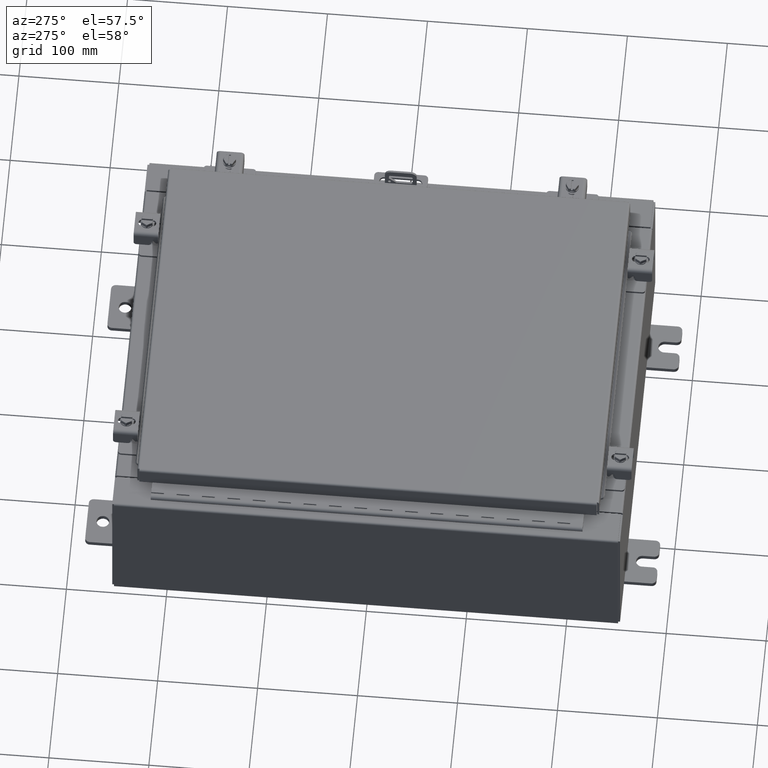
[diagram: clean part render]
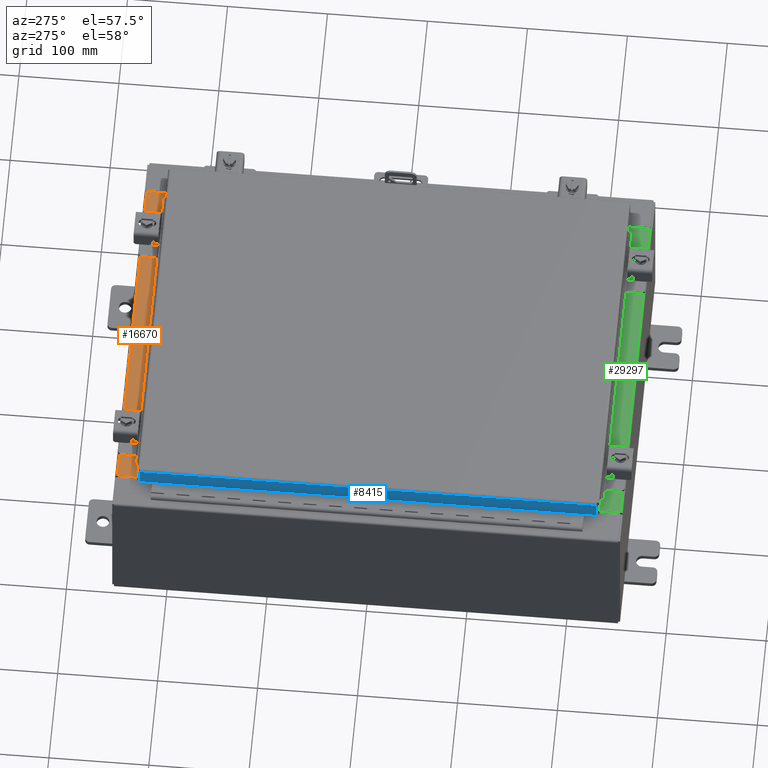
[diagram: same view with three faces highlighted in distinct colors, each labeled with its STEP entity id]
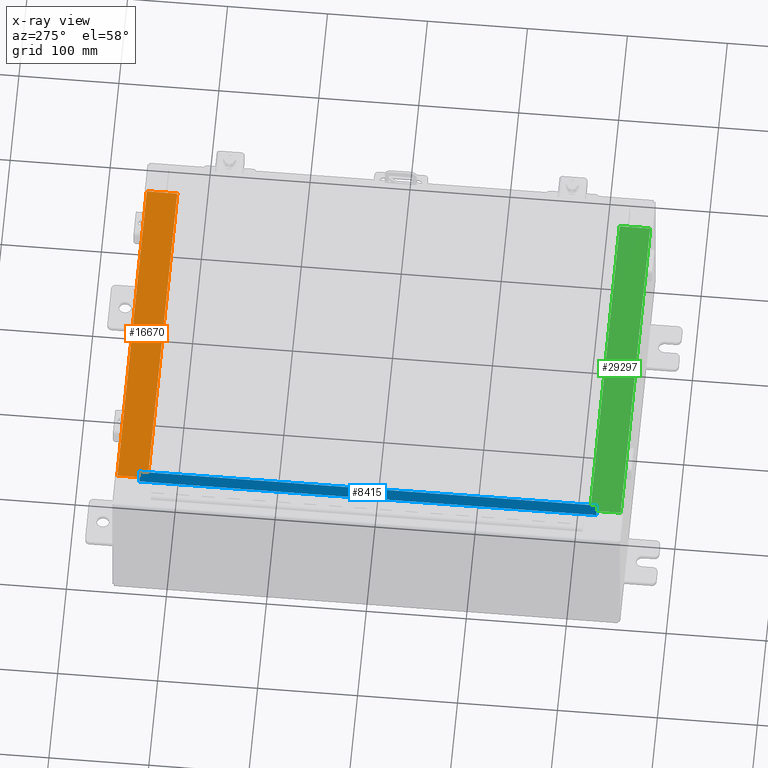
[diagram: x-ray of the same camera — body ghosted, the three highlighted faces saturated]
A machine part, auxiliary view with three faces highlighted in distinct colors.
The next image is the same camera in x-ray (body ghosted, the three faces saturated) — at least one of them is partly hidden behind the body in this view.
Their STEP definitions:

[orange] entity #16670 — the highlighted planar face has unit normal (0, 0, 1).
#143 = VECTOR ( 'NONE', #23878, 39.37007874015748100 ) ;
#1401 = VECTOR ( 'NONE', #24257, 39.37007874015748100 ) ;
#2067 = CARTESIAN_POINT ( 'NONE',  ( 6.637199999999999100, -0.08769999999999993100, 3.000000000000000900 ) ) ;
#3638 = CARTESIAN_POINT ( 'NONE',  ( 6.637200000000000000, -1.300299999999999800, 3.000000000000005300 ) ) ;
#4188 = VERTEX_POINT ( 'NONE', #25237 ) ;
#6175 = LINE ( 'NONE', #7908, #143 ) ;
#7908 = CARTESIAN_POINT ( 'NONE',  ( 0.0000000000000000000, -0.08770000000000026400, 3.000000000000001300 ) ) ;
#8028 = VECTOR ( 'NONE', #11603, 39.37007874015748100 ) ;
#8061 = ORIENTED_EDGE ( 'NONE', *, *, #13787, .F. ) ;
#8126 = LINE ( 'NONE', #3638, #1401 ) ;
#8396 = LINE ( 'NONE', #13828, #13723 ) ;
#10693 = VERTEX_POINT ( 'NONE', #22398 ) ;
#10732 = VERTEX_POINT ( 'NONE', #2067 ) ;
#11429 = EDGE_CURVE ( 'NONE', #10732, #21051, #6175, .T. ) ;
#11603 = DIRECTION ( 'NONE',  ( -1.000000000000000000, 0.0000000000000000000, 0.0000000000000000000 ) ) ;
#11629 = DIRECTION ( 'NONE',  ( -0.0000000000000000000, 1.000000000000000000, -3.566381192773190000E-015 ) ) ;
#11915 = FACE_OUTER_BOUND ( 'NONE', #13298, .T. ) ;
#13167 = DIRECTION ( 'NONE',  ( 0.0000000000000000000, 3.566381192773190000E-015, 1.000000000000000000 ) ) ;
#13298 = EDGE_LOOP ( 'NONE', ( #16402, #15054, #8061, #14436 ) ) ;
#13723 = VECTOR ( 'NONE', #11629, 39.37007874015748100 ) ;
#13787 = EDGE_CURVE ( 'NONE', #10732, #4188, #8126, .T. ) ;
#13828 = CARTESIAN_POINT ( 'NONE',  ( -6.637200000000000000, -0.07469999999999973900, 3.000000000000000900 ) ) ;
#14436 = ORIENTED_EDGE ( 'NONE', *, *, #11429, .T. ) ;
#14780 = LINE ( 'NONE', #23068, #8028 ) ;
#15054 = ORIENTED_EDGE ( 'NONE', *, *, #20749, .F. ) ;
#15599 = EDGE_CURVE ( 'NONE', #10693, #21051, #8396, .T. ) ;
#16402 = ORIENTED_EDGE ( 'NONE', *, *, #15599, .F. ) ;
#16670 = ADVANCED_FACE ( 'NONE', ( #11915 ), #22317, .T. ) ;
#20647 = AXIS2_PLACEMENT_3D ( 'NONE', #26892, #13167, #29147 ) ;
#20749 = EDGE_CURVE ( 'NONE', #4188, #10693, #14780, .T. ) ;
#21051 = VERTEX_POINT ( 'NONE', #22236 ) ;
#22236 = CARTESIAN_POINT ( 'NONE',  ( -6.637200000000000000, -0.08770000000000026400, 3.000000000000000900 ) ) ;
#22317 = PLANE ( 'NONE',  #20647 ) ;
#22398 = CARTESIAN_POINT ( 'NONE',  ( -6.637200000000000000, -1.287299999999999200, 3.000000000000005300 ) ) ;
#23068 = CARTESIAN_POINT ( 'NONE',  ( 6.637200000000000900, -1.287299999999999900, 3.000000000000005300 ) ) ;
#23878 = DIRECTION ( 'NONE',  ( -1.000000000000000000, 0.0000000000000000000, 0.0000000000000000000 ) ) ;
#24257 = DIRECTION ( 'NONE',  ( -0.0000000000000000000, -1.000000000000000000, 3.566381192773190000E-015 ) ) ;
#25237 = CARTESIAN_POINT ( 'NONE',  ( 6.637200000000000000, -1.287299999999999900, 3.000000000000005300 ) ) ;
#26892 = CARTESIAN_POINT ( 'NONE',  ( 0.0000000000000000000, 1.069354855923099900E-014, 3.000000000000000900 ) ) ;
#29147 = DIRECTION ( 'NONE',  ( 0.0000000000000000000, -1.000000000000000000, 3.566381192773190000E-015 ) ) ;

[blue] entity #8415 — the highlighted planar face has unit normal (1, 0, -0).
#238 = VECTOR ( 'NONE', #16373, 39.37007874015748100 ) ;
#1082 = EDGE_LOOP ( 'NONE', ( #20017, #9946, #15395, #7712 ) ) ;
#1414 = LINE ( 'NONE', #4896, #18868 ) ;
#2124 = AXIS2_PLACEMENT_3D ( 'NONE', #29107, #17835, #4193 ) ;
#2967 = VERTEX_POINT ( 'NONE', #12255 ) ;
#3338 = VECTOR ( 'NONE', #11847, 39.37007874015748100 ) ;
#4134 = VERTEX_POINT ( 'NONE', #27401 ) ;
#4193 = DIRECTION ( 'NONE',  ( -3.034122441942816500E-015, 0.0000000000000000000, -1.000000000000000000 ) ) ;
#4896 = CARTESIAN_POINT ( 'NONE',  ( -7.077999999999998500, -9.093999999999999400, -0.08770000000000004200 ) ) ;
#5242 = LINE ( 'NONE', #27987, #11226 ) ;
#6531 = LINE ( 'NONE', #23310, #3338 ) ;
#7258 = CARTESIAN_POINT ( 'NONE',  ( -7.078000000000000300, -9.093999999999999400, -0.7949999999999997100 ) ) ;
#7269 = FACE_OUTER_BOUND ( 'NONE', #1082, .T. ) ;
#7712 = ORIENTED_EDGE ( 'NONE', *, *, #27544, .F. ) ;
#8415 = ADVANCED_FACE ( 'NONE', ( #7269 ), #10922, .F. ) ;
#8747 = CARTESIAN_POINT ( 'NONE',  ( -7.078000000000000300, -9.005157864376261800, -0.7949999999999996000 ) ) ;
#9946 = ORIENTED_EDGE ( 'NONE', *, *, #15490, .T. ) ;
#10922 = PLANE ( 'NONE',  #2124 ) ;
#11226 = VECTOR ( 'NONE', #14297, 39.37007874015748100 ) ;
#11673 = DIRECTION ( 'NONE',  ( 3.645815397208356400E-031, -1.000000000000000000, -1.074717912135910000E-045 ) ) ;
#11847 = DIRECTION ( 'NONE',  ( -3.034122441942816500E-015, 6.982962677686267500E-015, -1.000000000000000000 ) ) ;
#12255 = CARTESIAN_POINT ( 'NONE',  ( -7.077999999999998500, 9.005157864376270600, -0.08770000000000004200 ) ) ;
#14297 = DIRECTION ( 'NONE',  ( -3.034122441942816500E-015, 6.982962677686267500E-015, -1.000000000000000000 ) ) ;
#15395 = ORIENTED_EDGE ( 'NONE', *, *, #16960, .F. ) ;
#15490 = EDGE_CURVE ( 'NONE', #2967, #4134, #5242, .T. ) ;
#16373 = DIRECTION ( 'NONE',  ( 4.379057701015054300E-047, 1.000000000000000000, 1.201604571657912400E-016 ) ) ;
#16960 = EDGE_CURVE ( 'NONE', #22040, #4134, #26592, .T. ) ;
#17835 = DIRECTION ( 'NONE',  ( 1.000000000000000000, 3.645815397208356400E-031, -3.034122441942816500E-015 ) ) ;
#18341 = EDGE_CURVE ( 'NONE', #2967, #27156, #1414, .T. ) ;
#18868 = VECTOR ( 'NONE', #11673, 39.37007874015748100 ) ;
#20017 = ORIENTED_EDGE ( 'NONE', *, *, #18341, .F. ) ;
#22040 = VERTEX_POINT ( 'NONE', #8747 ) ;
#23310 = CARTESIAN_POINT ( 'NONE',  ( -7.077999999999998500, -9.005157864376267100, -0.07469999999999976700 ) ) ;
#26486 = CARTESIAN_POINT ( 'NONE',  ( -7.077999999999998500, -9.005157864376265300, -0.08770000000000007000 ) ) ;
#26592 = LINE ( 'NONE', #7258, #238 ) ;
#27156 = VERTEX_POINT ( 'NONE', #26486 ) ;
#27401 = CARTESIAN_POINT ( 'NONE',  ( -7.078000000000000300, 9.005157864376274200, -0.7949999999999974900 ) ) ;
#27544 = EDGE_CURVE ( 'NONE', #27156, #22040, #6531, .T. ) ;
#27987 = CARTESIAN_POINT ( 'NONE',  ( -7.077999999999998500, 9.005157864376270600, 8.461901357369529800E-014 ) ) ;
#29107 = CARTESIAN_POINT ( 'NONE',  ( -7.077999999999998500, -2.580508138144074000E-030, 2.173633230008283200E-014 ) ) ;

[green] entity #29297 — the highlighted planar face has unit normal (-0, -0, 1).
#140 = CARTESIAN_POINT ( 'NONE',  ( -6.637200000000000000, -0.07469999999999973900, 3.000000000000000900 ) ) ;
#1121 = VERTEX_POINT ( 'NONE', #22291 ) ;
#1166 = LINE ( 'NONE', #140, #12484 ) ;
#1406 = AXIS2_PLACEMENT_3D ( 'NONE', #20891, #7217, #23166 ) ;
#2027 = VECTOR ( 'NONE', #12135, 39.37007874015748100 ) ;
#2046 = DIRECTION ( 'NONE',  ( -0.0000000000000000000, -1.000000000000000000, 3.566381192773190000E-015 ) ) ;
#2563 = DIRECTION ( 'NONE',  ( -1.000000000000000000, 0.0000000000000000000, 0.0000000000000000000 ) ) ;
#2647 = PLANE ( 'NONE',  #1406 ) ;
#4549 = ORIENTED_EDGE ( 'NONE', *, *, #20317, .T. ) ;
#4819 = FACE_OUTER_BOUND ( 'NONE', #17204, .T. ) ;
#5326 = CARTESIAN_POINT ( 'NONE',  ( 0.0000000000000000000, -0.08770000000000026400, 3.000000000000001300 ) ) ;
#5472 = CARTESIAN_POINT ( 'NONE',  ( 6.637199999999999100, -0.08769999999999993100, 3.000000000000000900 ) ) ;
#6785 = ORIENTED_EDGE ( 'NONE', *, *, #10157, .F. ) ;
#7217 = DIRECTION ( 'NONE',  ( 0.0000000000000000000, 3.566381192773190000E-015, 1.000000000000000000 ) ) ;
#7494 = VERTEX_POINT ( 'NONE', #5472 ) ;
#8049 = LINE ( 'NONE', #5326, #2027 ) ;
#8320 = LINE ( 'NONE', #27662, #20475 ) ;
#10157 = EDGE_CURVE ( 'NONE', #22945, #1121, #1166, .T. ) ;
#10895 = EDGE_CURVE ( 'NONE', #21730, #22945, #8320, .T. ) ;
#12135 = DIRECTION ( 'NONE',  ( -1.000000000000000000, 0.0000000000000000000, 0.0000000000000000000 ) ) ;
#12426 = VECTOR ( 'NONE', #2046, 39.37007874015748100 ) ;
#12484 = VECTOR ( 'NONE', #18352, 39.37007874015748100 ) ;
#14177 = ORIENTED_EDGE ( 'NONE', *, *, #17628, .F. ) ;
#16167 = ORIENTED_EDGE ( 'NONE', *, *, #10895, .F. ) ;
#17204 = EDGE_LOOP ( 'NONE', ( #6785, #16167, #14177, #4549 ) ) ;
#17628 = EDGE_CURVE ( 'NONE', #7494, #21730, #25350, .T. ) ;
#18352 = DIRECTION ( 'NONE',  ( -0.0000000000000000000, 1.000000000000000000, -3.566381192773190000E-015 ) ) ;
#20161 = CARTESIAN_POINT ( 'NONE',  ( -6.637200000000000000, -1.287299999999999200, 3.000000000000005300 ) ) ;
#20317 = EDGE_CURVE ( 'NONE', #7494, #1121, #8049, .T. ) ;
#20475 = VECTOR ( 'NONE', #2563, 39.37007874015748100 ) ;
#20891 = CARTESIAN_POINT ( 'NONE',  ( 0.0000000000000000000, 1.069354855923099900E-014, 3.000000000000000900 ) ) ;
#21730 = VERTEX_POINT ( 'NONE', #25957 ) ;
#22291 = CARTESIAN_POINT ( 'NONE',  ( -6.637200000000000000, -0.08770000000000026400, 3.000000000000000900 ) ) ;
#22466 = CARTESIAN_POINT ( 'NONE',  ( 6.637200000000000000, -1.300299999999999800, 3.000000000000005300 ) ) ;
#22945 = VERTEX_POINT ( 'NONE', #20161 ) ;
#23166 = DIRECTION ( 'NONE',  ( 0.0000000000000000000, -1.000000000000000000, 3.566381192773190000E-015 ) ) ;
#25350 = LINE ( 'NONE', #22466, #12426 ) ;
#25957 = CARTESIAN_POINT ( 'NONE',  ( 6.637200000000000000, -1.287299999999999900, 3.000000000000005300 ) ) ;
#27662 = CARTESIAN_POINT ( 'NONE',  ( 6.637200000000000900, -1.287299999999999900, 3.000000000000005300 ) ) ;
#29297 = ADVANCED_FACE ( 'NONE', ( #4819 ), #2647, .T. ) ;